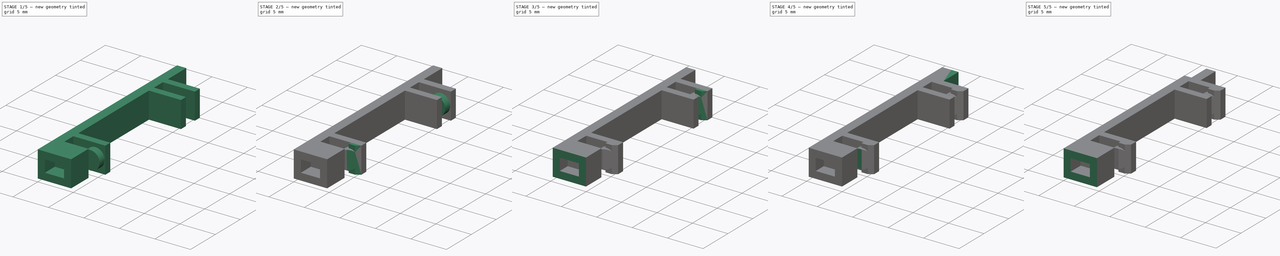
[diagram: build sequence overview — one tinted view per stage of 5, left to right]
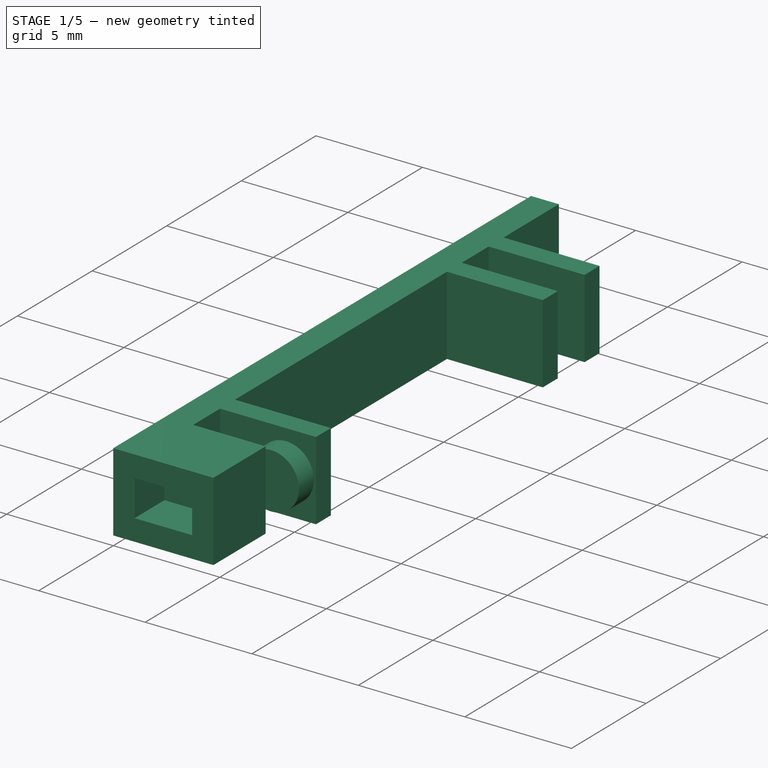
[diagram: stage 1 of 5 — iso view after this stage's code; geometry added in this stage tinted green]
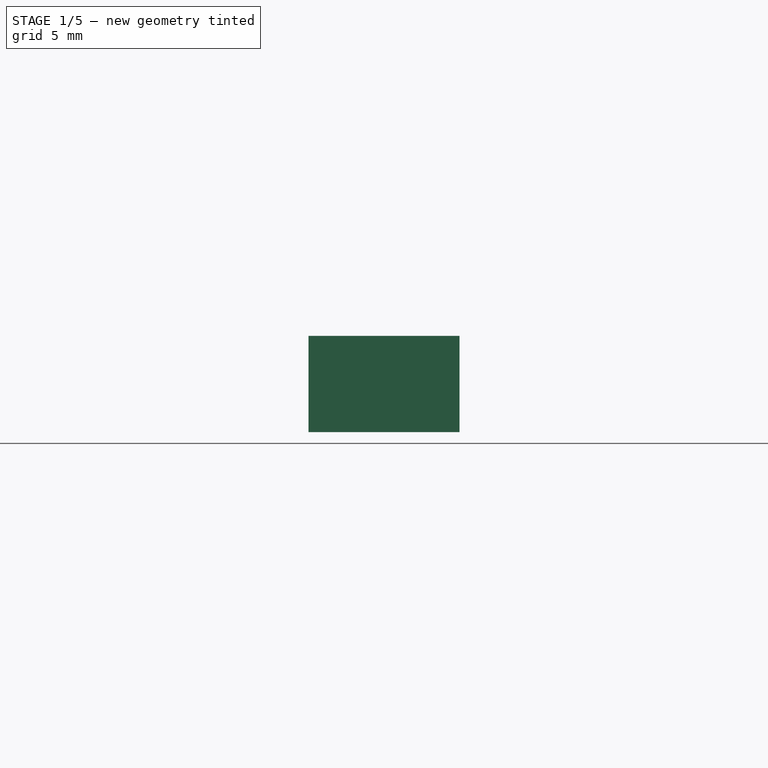
[diagram: stage 1 of 5 — front view after this stage's code; geometry added in this stage tinted green]
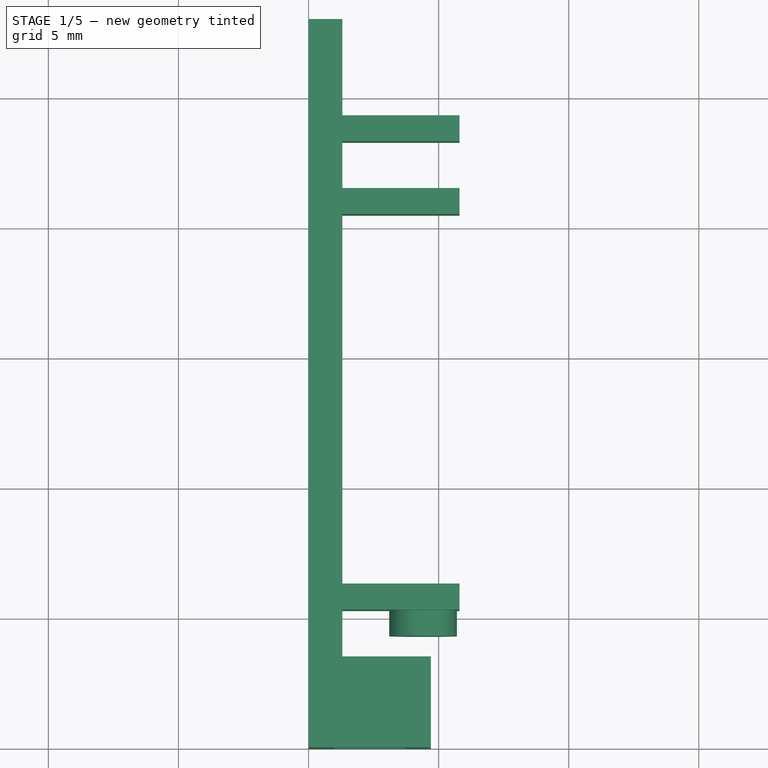
[diagram: stage 1 of 5 — top view after this stage's code; geometry added in this stage tinted green]
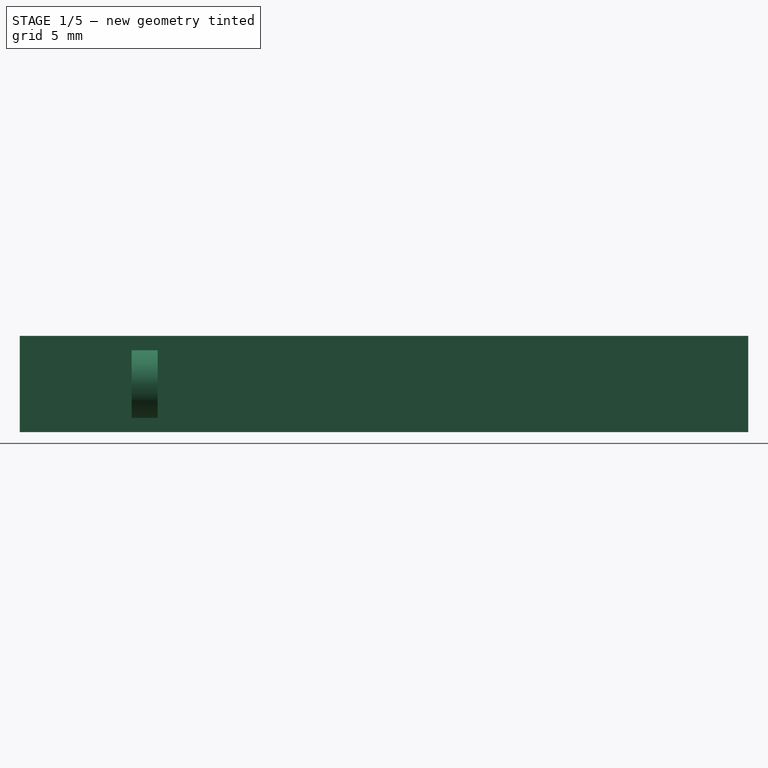
[diagram: stage 1 of 5 — right view after this stage's code; geometry added in this stage tinted green]
FCSTD DOCUMENT  (FreeCAD 0.16R6706 (Git))
Label: Abstandshalter V1.1
License: All rights reserved
LicenseURL: http://de.wikipedia.org/wiki/Alle_Rechte_vorbehalten
objects: Sketcher::SketchObject×16, PartDesign::Pad×8, PartDesign::Pocket×8
note: 48 computed .brp shape members not serialized (recipe doc carries the construction recipe); baked Part::Feature solids carry a one-line shape summary decoded from their .brp

FEATURE [Sketcher::SketchObject] Sketch
  sketch-geometry (18):
    g0: LineSegment StartX=0 StartY=28 StartZ=0 EndX=0 EndY=0 EndZ=0
    g1: LineSegment StartX=0 StartY=0 StartZ=0 EndX=4.7 EndY=0 EndZ=0
    g2: LineSegment StartX=4.7 StartY=0 StartZ=0 EndX=4.7 EndY=3.5 EndZ=0
    g3: LineSegment StartX=4.7 StartY=3.5 StartZ=0 EndX=1.3 EndY=3.5 EndZ=0
    g4: LineSegment StartX=1.3 StartY=3.5 StartZ=0 EndX=1.3 EndY=5.3 EndZ=0
    g5: LineSegment StartX=1.3 StartY=5.3 StartZ=0 EndX=5.8 EndY=5.3 EndZ=0
    g6: LineSegment StartX=5.8 StartY=5.3 StartZ=0 EndX=5.8 EndY=6.3 EndZ=0
    g7: LineSegment StartX=5.8 StartY=6.3 StartZ=0 EndX=1.3 EndY=6.3 EndZ=0
    g8: LineSegment StartX=1.3 StartY=6.3 StartZ=0 EndX=1.3 EndY=20.5 EndZ=0
    g9: LineSegment StartX=1.3 StartY=20.5 StartZ=0 EndX=5.8 EndY=20.5 EndZ=0
    g10: LineSegment StartX=5.8 StartY=20.5 StartZ=0 EndX=5.8 EndY=21.5 EndZ=0
    g11: LineSegment StartX=5.8 StartY=21.5 StartZ=0 EndX=1.3 EndY=21.5 EndZ=0
    g12: LineSegment StartX=1.3 StartY=21.5 StartZ=0 EndX=1.3 EndY=23.3 EndZ=0
    g13: LineSegment StartX=1.3 StartY=23.3 StartZ=0 EndX=5.8 EndY=23.3 EndZ=0
    g14: LineSegment StartX=5.8 StartY=23.3 StartZ=0 EndX=5.8 EndY=24.3 EndZ=0
    g15: LineSegment StartX=5.8 StartY=24.3 StartZ=0 EndX=1.3 EndY=24.3 EndZ=0
    g16: LineSegment StartX=1.3 StartY=28 StartZ=0 EndX=0 EndY=28 EndZ=0
    g17: LineSegment StartX=1.3 StartY=28 StartZ=0 EndX=1.3 EndY=24.3 EndZ=0
  constraints (53):
    c: PointOnObject(g0,g-2)
    c: Coincident(g0,g-1)
    c: Coincident(g0,g1)
    c: PointOnObject(g1,g-1)
    c: Coincident(g1,g2)
    c: Vertical(g2)
    c: Coincident(g2,g3)
    c: Horizontal(g3)
    c: Coincident(g3,g4)
    c: Vertical(g4)
    c: Coincident(g4,g5)
    c: Horizontal(g5)
    c: Coincident(g5,g6)
    c: Coincident(g6,g7)
    c: Horizontal(g7)
    c: Coincident(g7,g8)
    c: Vertical(g8)
    c: Coincident(g8,g9)
    c: Horizontal(g9)
    c: Coincident(g9,g10)
    c: Vertical(g10)
    c: Coincident(g10,g11)
    c: Coincident(g11,g12)
    c: Vertical(g12)
    c: Coincident(g12,g13)
    c: Horizontal(g13)
    c: Coincident(g13,g14)
    c: Vertical(g14)
    c: Coincident(g14,g15)
    c: Horizontal(g15)
    c: Coincident(g16,g0)
    c: DistanceY(g2,g2) = 3.5
    c: DistanceY(g4,g4) = 1.8
    c: DistanceY(g6,g6) = 1
    c: DistanceY(g10,g10) = 1
    c: Horizontal(g11)
    c: DistanceY(g12,g12) = 1.8
    c: DistanceY(g14,g14) = 1
    c: Horizontal(g16)
    c: DistanceY(g0,g0) = 28
    c: DistanceX(g16,g16) = 1.3
    c: DistanceX(g-1,g11) = 1.3
    c: DistanceX(g-1,g8) = 1.3
    c: DistanceX(g-1,g3) = 1.3
    c: Coincident(g17,g16)
    c: Coincident(g17,g15)
    c: Vertical(g17)
    c: DistanceY(g3,g11) = 18
    c: DistanceX(g1,g1) = 4.7
    c: Vertical(g6)
    c: DistanceX(g-1,g6) = 5.8
    c: DistanceX(g-1,g9) = 5.8
    c: DistanceX(g-1,g13) = 5.8
FEATURE [PartDesign::Pad] Pad
  Length = 3.7
  Length2 = 100
  Sketch = -> Sketch
  Type = 0
FEATURE [Sketcher::SketchObject] Sketch001
  ExternalGeometry = -> [Pad]
  Placement = pos=(0,0,0) rot=(1,0,0;1.5708rad)
  Support = -> Pad [Face2]
  sketch-geometry (4):
    g0: LineSegment StartX=1 StartY=2.7 StartZ=0 EndX=3.7 EndY=2.7 EndZ=0
    g1: LineSegment StartX=3.7 StartY=2.7 StartZ=0 EndX=3.7 EndY=1 EndZ=0
    g2: LineSegment StartX=3.7 StartY=1 StartZ=0 EndX=1 EndY=1 EndZ=0
    g3: LineSegment StartX=1 StartY=1 StartZ=0 EndX=1 EndY=2.7 EndZ=0
  constraints (12):
    c: Coincident(g0,g1)
    c: Coincident(g1,g2)
    c: Coincident(g2,g3)
    c: Coincident(g3,g0)
    c: Horizontal(g0)
    c: Horizontal(g2)
    c: Vertical(g1)
    c: Vertical(g3)
    c: DistanceY(g0,g-3) = 1
    c: DistanceY(g-1,g2) = 1
    c: DistanceX(g0,g-3) = 1
    c: DistanceX(g-3,g0) = 1
FEATURE [PartDesign::Pocket] Pocket
  Length = 2
  Sketch = -> Sketch001
  Type = 0
FEATURE [Sketcher::SketchObject] Sketch002
  ExternalGeometry = -> [Pocket]
  Placement = pos=(0,5.3,0) rot=(1,0,0;1.5708rad)
  Support = -> Pocket [Face14]
  sketch-geometry (1):
    g0: Circle CenterX=4.4 CenterY=1.85 CenterZ=0 NormalX=0 NormalY=0 NormalZ=1 Radius=1.3
  constraints (3):
    c: Radius(g0) = 1.3
    c: DistanceY(g0,g-5) = 1.85
    c: DistanceX(g-3,g0) = 3.1
FEATURE [PartDesign::Pad] Pad001
  Length = 1
  Length2 = 100
  Sketch = -> Sketch002
  Type = 0
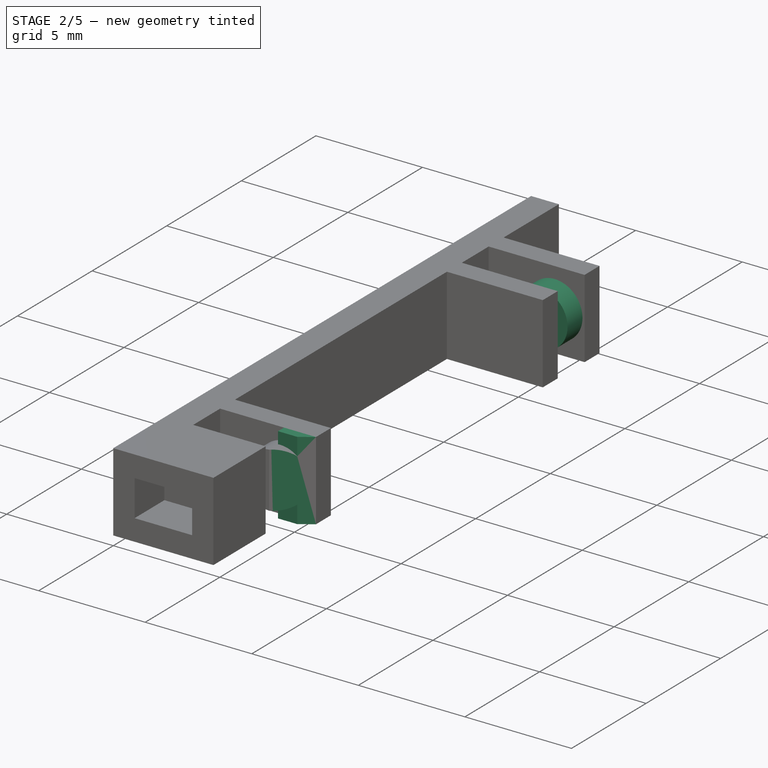
[diagram: stage 2 of 5 — iso view after this stage's code; geometry added in this stage tinted green]
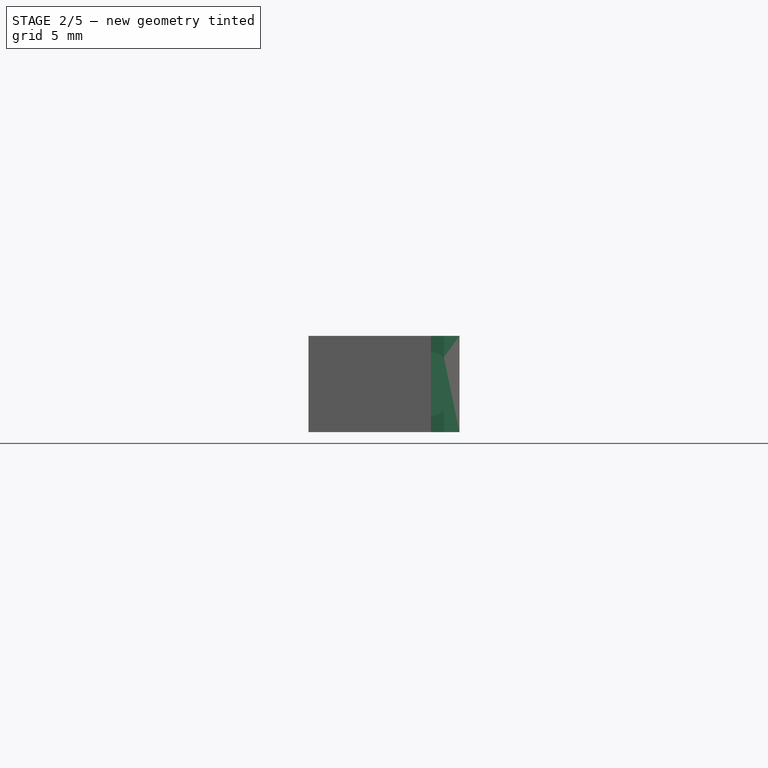
[diagram: stage 2 of 5 — front view after this stage's code; geometry added in this stage tinted green]
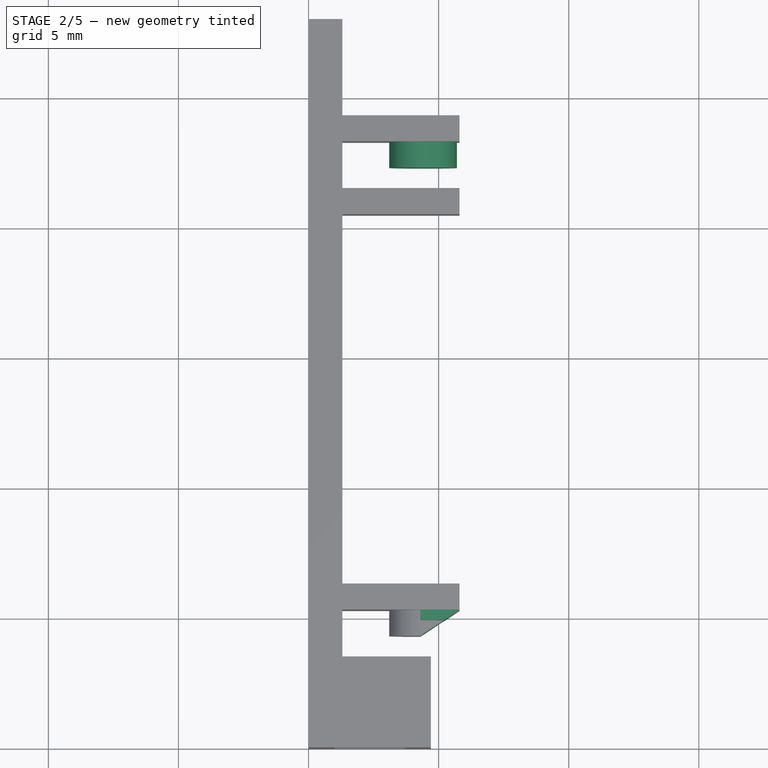
[diagram: stage 2 of 5 — top view after this stage's code; geometry added in this stage tinted green]
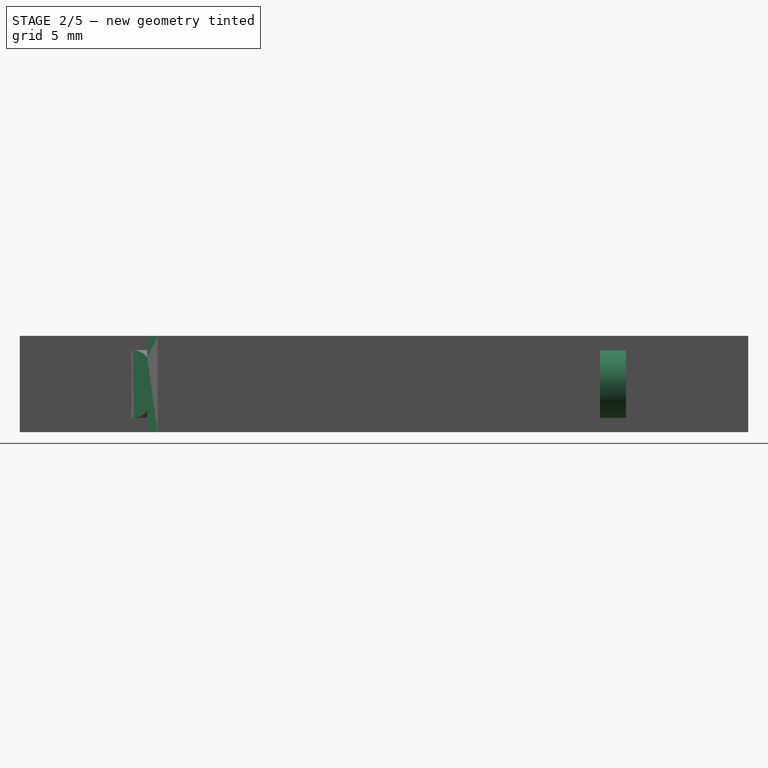
[diagram: stage 2 of 5 — right view after this stage's code; geometry added in this stage tinted green]
FEATURE [Sketcher::SketchObject] Sketch003
  ExternalGeometry = -> [Pad001]
  Placement = pos=(0,5.3,0) rot=(1,0,0;1.5708rad)
  Support = -> Pad001 [Face14]
  sketch-geometry (4):
    g0: LineSegment StartX=5.8 StartY=3.7 StartZ=0 EndX=4.3 EndY=3.7 EndZ=0
    g1: LineSegment StartX=4.3 StartY=3.7 StartZ=0 EndX=4.3 EndY=0 EndZ=0
    g2: LineSegment StartX=4.3 StartY=0 StartZ=0 EndX=5.8 EndY=0 EndZ=0
    g3: LineSegment StartX=5.8 StartY=0 StartZ=0 EndX=5.8 EndY=3.7 EndZ=0
  constraints (11):
    c: Coincident(g0,g1)
    c: Coincident(g1,g2)
    c: Coincident(g2,g3)
    c: Coincident(g3,g0)
    c: Horizontal(g0)
    c: Horizontal(g2)
    c: Vertical(g1)
    c: Vertical(g3)
    c: Coincident(g0,g-3)
    c: PointOnObject(g1,g-4)
    c: DistanceX(g0,g0) = 1.5
FEATURE [PartDesign::Pad] Pad002
  Length = 0.4
  Length2 = 100
  Sketch = -> Sketch003
  Type = 0
FEATURE [Sketcher::SketchObject] Sketch004
  ExternalGeometry = -> [Pad002]
  Placement = pos=(0,0,3.7) rot=(0,0,1;0rad)
  Support = -> Pad002 [Face29]
  sketch-geometry (3):
    g0: LineSegment StartX=5.8 StartY=5.3 StartZ=0 EndX=4.3 EndY=4.3 EndZ=0
    g1: LineSegment StartX=4.3 StartY=4.3 StartZ=0 EndX=5.8 EndY=4.3 EndZ=0
    g2: LineSegment StartX=5.8 StartY=4.3 StartZ=0 EndX=5.8 EndY=5.3 EndZ=0
  constraints (9):
    c: Coincident(g0,g1)
    c: Coincident(g2,g1)
    c: Coincident(g2,g0)
    c: Vertical(g2)
    c: PointOnObject(g0,g-3)
    c: DistanceX(g-4,g0) = 0
    c: DistanceY(g0,g-4) = 1
    c: Horizontal(g1)
    c: PointOnObject(g0,g-4)
FEATURE [PartDesign::Pocket] Pocket001
  Length = 5
  Sketch = -> Sketch004
  Type = 0
FEATURE [Sketcher::SketchObject] Sketch005
  ExternalGeometry = -> [Pocket001]
  Placement = pos=(0,23.3,0) rot=(1,0,0;1.5708rad)
  Support = -> Pocket001 [Face19]
  sketch-geometry (1):
    g0: Circle CenterX=4.4 CenterY=1.85 CenterZ=0 NormalX=0 NormalY=0 NormalZ=1 Radius=1.3
  constraints (3):
    c: Radius(g0) = 1.3
    c: DistanceX(g-3,g0) = 3.1
    c: DistanceY(g0,g-5) = 1.85
FEATURE [PartDesign::Pad] Pad003
  Length = 1
  Length2 = 100
  Sketch = -> Sketch005
  Type = 0
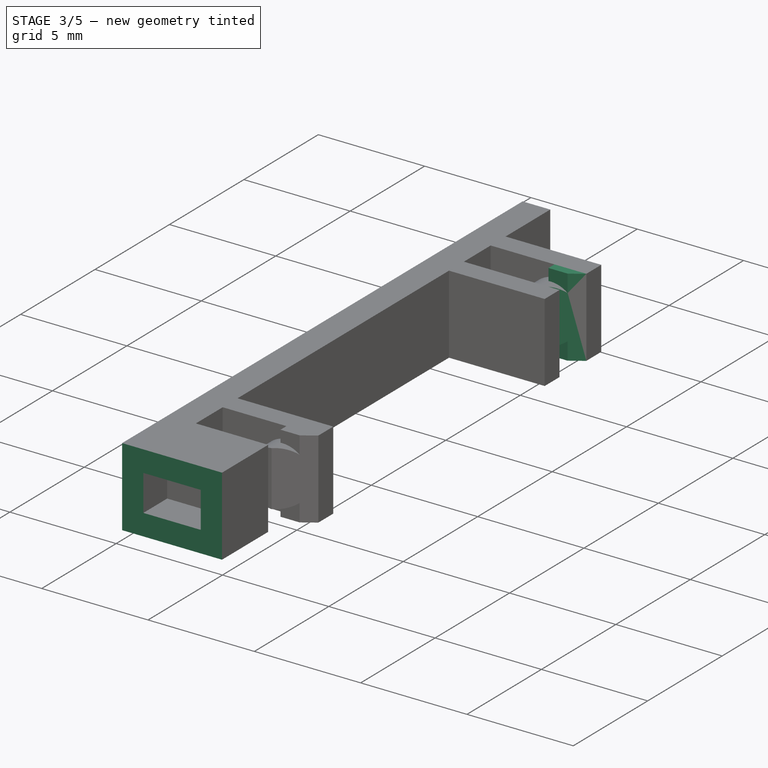
[diagram: stage 3 of 5 — iso view after this stage's code; geometry added in this stage tinted green]
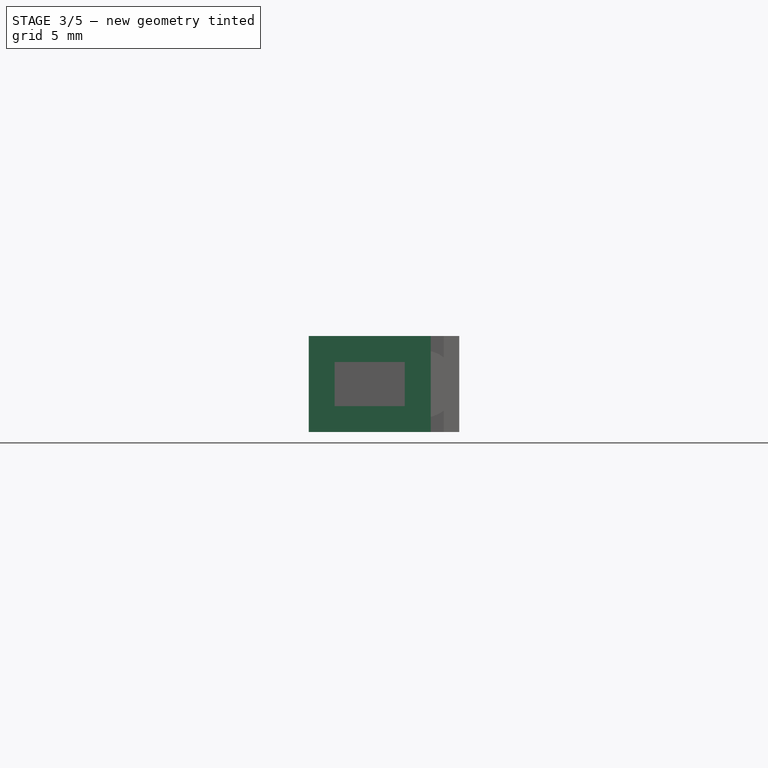
[diagram: stage 3 of 5 — front view after this stage's code; geometry added in this stage tinted green]
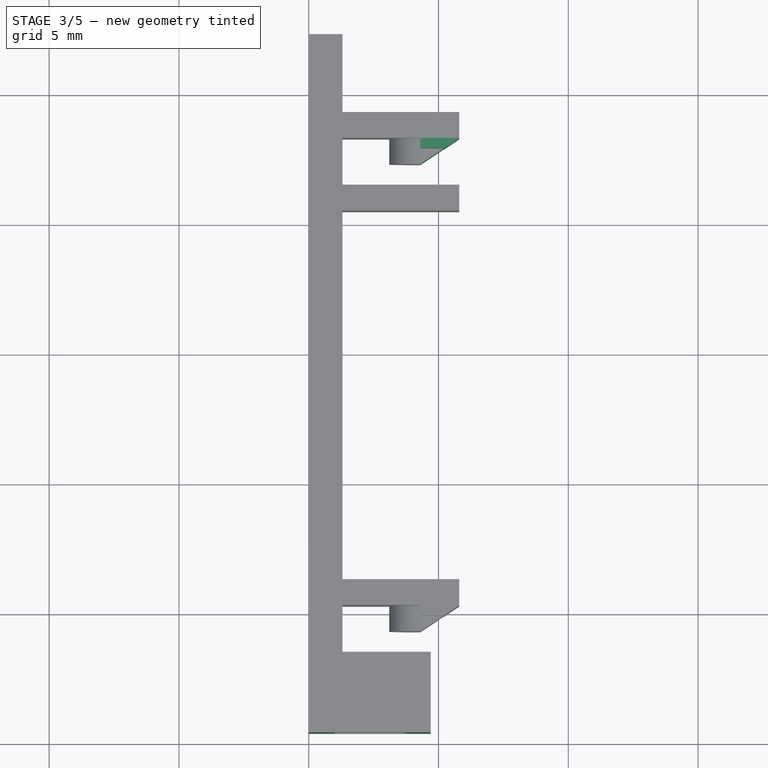
[diagram: stage 3 of 5 — top view after this stage's code; geometry added in this stage tinted green]
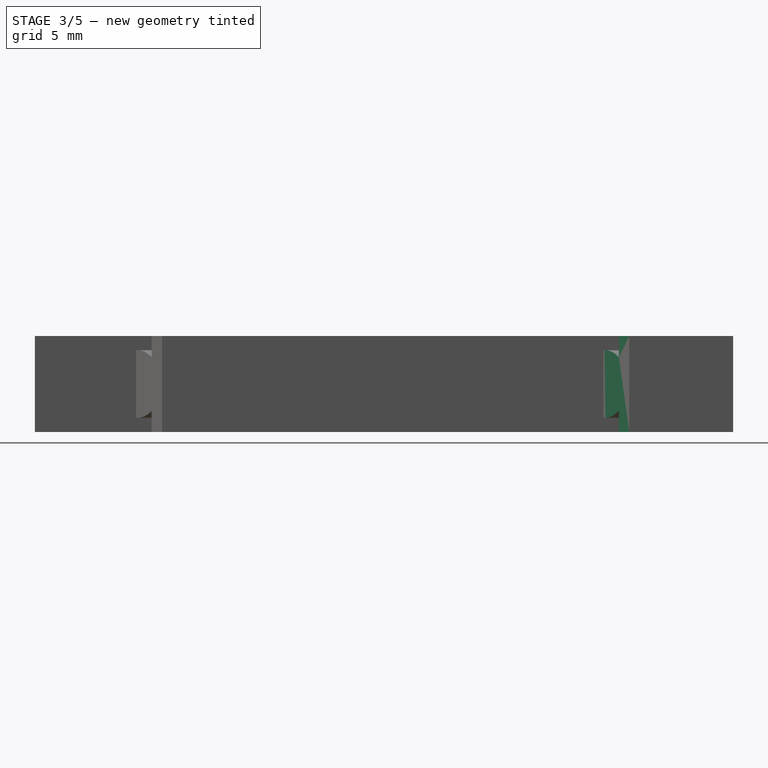
[diagram: stage 3 of 5 — right view after this stage's code; geometry added in this stage tinted green]
FEATURE [Sketcher::SketchObject] Sketch006
  ExternalGeometry = -> [Pad003]
  Placement = pos=(0,23.3,0) rot=(1,0,0;1.5708rad)
  Support = -> Pad003 [Face19]
  sketch-geometry (4):
    g0: LineSegment StartX=5.8 StartY=3.7 StartZ=0 EndX=4.3 EndY=3.7 EndZ=0
    g1: LineSegment StartX=4.3 StartY=3.7 StartZ=0 EndX=4.3 EndY=0 EndZ=0
    g2: LineSegment StartX=4.3 StartY=0 StartZ=0 EndX=5.8 EndY=0 EndZ=0
    g3: LineSegment StartX=5.8 StartY=0 StartZ=0 EndX=5.8 EndY=3.7 EndZ=0
  constraints (11):
    c: Coincident(g0,g1)
    c: Coincident(g1,g2)
    c: Coincident(g2,g3)
    c: Coincident(g3,g0)
    c: Horizontal(g0)
    c: Horizontal(g2)
    c: Vertical(g1)
    c: Vertical(g3)
    c: Coincident(g0,g-3)
    c: PointOnObject(g1,g-4)
    c: DistanceX(g0,g0) = 1.5
FEATURE [PartDesign::Pad] Pad004
  Length = 0.4
  Length2 = 100
  Sketch = -> Sketch006
  Type = 0
FEATURE [Sketcher::SketchObject] Sketch007
  ExternalGeometry = -> [Pad004]
  Placement = pos=(0,0,3.7) rot=(0,0,1;0rad)
  Support = -> Pad004 [Face37]
  sketch-geometry (3):
    g0: LineSegment StartX=5.8 StartY=23.3 StartZ=0 EndX=4.3 EndY=22.3 EndZ=0
    g1: LineSegment StartX=4.3 StartY=22.3 StartZ=0 EndX=5.8 EndY=22.3 EndZ=0
    g2: LineSegment StartX=5.8 StartY=22.3 StartZ=0 EndX=5.8 EndY=23.3 EndZ=0
  constraints (9):
    c: PointOnObject(g0,g-3)
    c: Coincident(g0,g1)
    c: Horizontal(g1)
    c: Coincident(g1,g2)
    c: Coincident(g2,g0)
    c: Vertical(g2)
    c: DistanceY(g0,g-4) = 1
    c: DistanceX(g-4,g0) = 0
    c: PointOnObject(g0,g-4)
FEATURE [PartDesign::Pocket] Pocket002
  Length = 5
  Sketch = -> Sketch007
  Type = 0
FEATURE [Sketcher::SketchObject] Sketch008
  ExternalGeometry = -> [Pocket002]
  Placement = pos=(0,0,0) rot=(1,0,0;1.5708rad)
  Support = -> Pocket002 [Face9]
  sketch-geometry (4):
    g0: LineSegment StartX=0 StartY=3.7 StartZ=0 EndX=4.7 EndY=3.7 EndZ=0
    g1: LineSegment StartX=4.7 StartY=3.7 StartZ=0 EndX=4.7 EndY=0 EndZ=0
    g2: LineSegment StartX=4.7 StartY=0 StartZ=0 EndX=0 EndY=0 EndZ=0
    g3: LineSegment StartX=0 StartY=0 StartZ=0 EndX=0 EndY=3.7 EndZ=0
  constraints (10):
    c: Coincident(g0,g1)
    c: Coincident(g1,g2)
    c: Coincident(g2,g3)
    c: Coincident(g3,g0)
    c: Horizontal(g0)
    c: Horizontal(g2)
    c: Vertical(g1)
    c: Vertical(g3)
    c: Coincident(g0,g-3)
    c: Coincident(g1,g-4)
FEATURE [PartDesign::Pocket] Pocket003
  Length = 0.4
  Sketch = -> Sketch008
  Type = 0
FEATURE [Sketcher::SketchObject] Sketch009
  ExternalGeometry = -> [Pocket003]
  Placement = pos=(0,28,0) rot=(0,0.707107,0.707107;3.14159rad)
  Support = -> Pocket003 [Face26]
  sketch-geometry (4):
    g0: LineSegment StartX=-1.3 StartY=3.7 StartZ=0 EndX=0 EndY=3.7 EndZ=0
    g1: LineSegment StartX=0 StartY=3.7 StartZ=0 EndX=0 EndY=0 EndZ=0
    g2: LineSegment StartX=0 StartY=0 StartZ=0 EndX=-1.3 EndY=0 EndZ=0
    g3: LineSegment StartX=-1.3 StartY=0 StartZ=0 EndX=-1.3 EndY=3.7 EndZ=0
  constraints (10):
    c: Coincident(g0,g1)
    c: Coincident(g1,g2)
    c: Coincident(g2,g3)
    c: Coincident(g3,g0)
    c: Horizontal(g0)
    c: Horizontal(g2)
    c: Vertical(g1)
    c: Vertical(g3)
    c: Coincident(g0,g-3)
    c: Coincident(g1,g-1)
FEATURE [PartDesign::Pocket] Pocket004
  Length = 0.7
  Sketch = -> Sketch009
  Type = 0
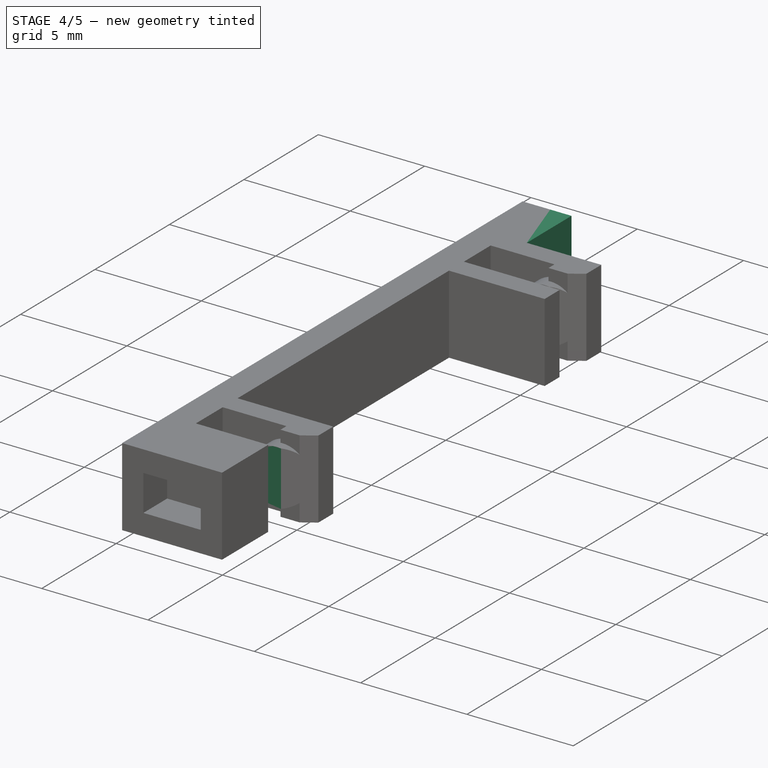
[diagram: stage 4 of 5 — iso view after this stage's code; geometry added in this stage tinted green]
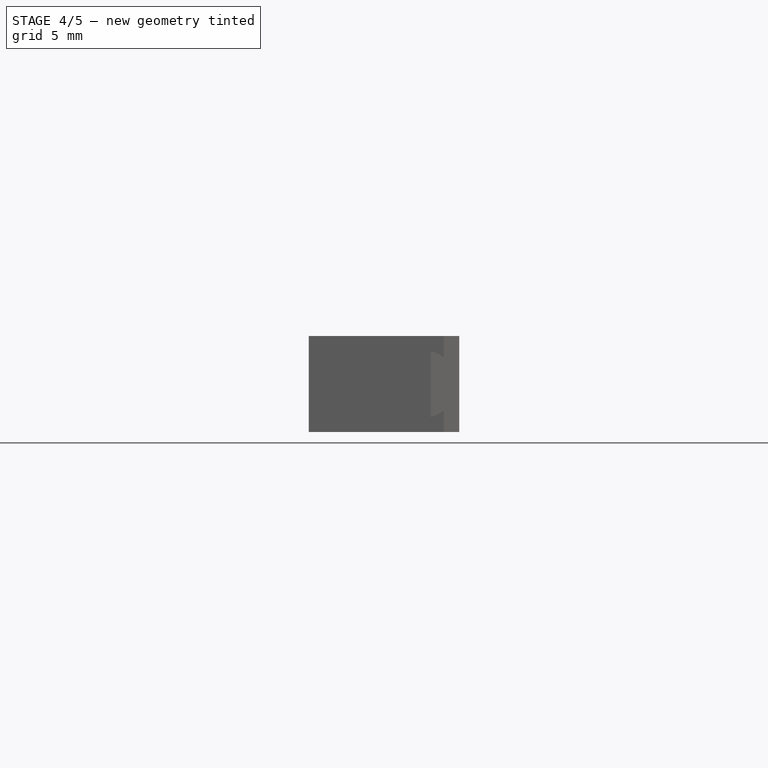
[diagram: stage 4 of 5 — front view after this stage's code; geometry added in this stage tinted green]
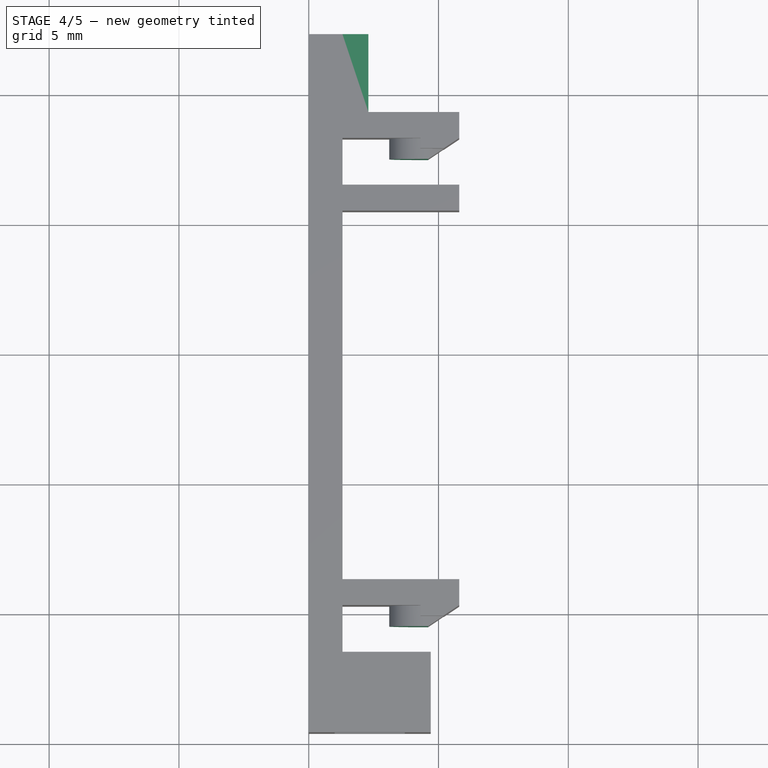
[diagram: stage 4 of 5 — top view after this stage's code; geometry added in this stage tinted green]
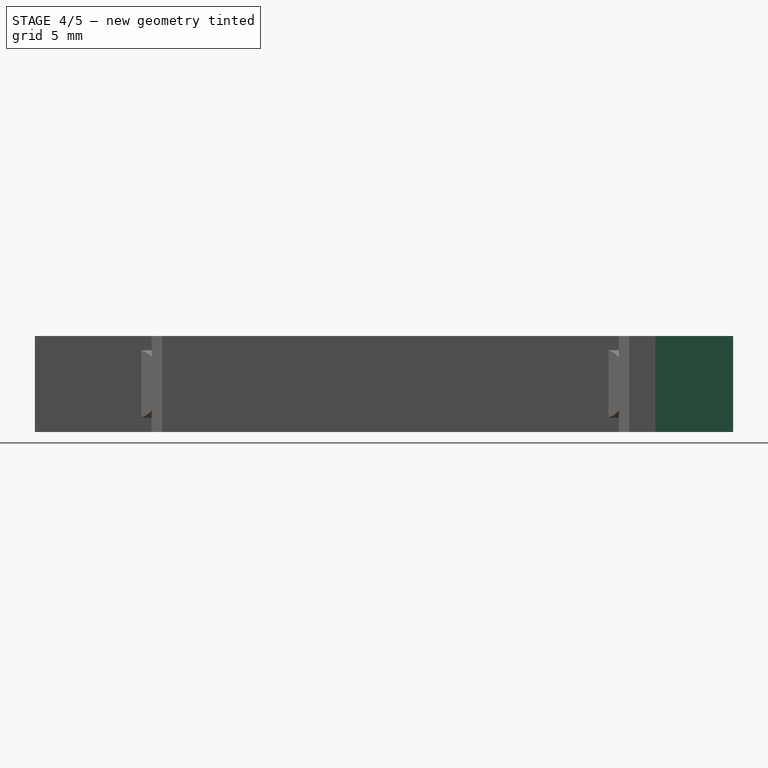
[diagram: stage 4 of 5 — right view after this stage's code; geometry added in this stage tinted green]
FEATURE [Sketcher::SketchObject] Sketch010
  ExternalGeometry = -> [Pocket004]
  Placement = pos=(0,4.3,0) rot=(1,0,0;1.5708rad)
  Support = -> Pocket004 [Face32]
  sketch-geometry (4):
    g0: LineSegment StartX=5.3 StartY=3.64615 StartZ=0 EndX=2.8 EndY=3.64615 EndZ=0
    g1: LineSegment StartX=2.8 StartY=3.64615 StartZ=0 EndX=2.8 EndY=0.0538519 EndZ=0
    g2: LineSegment StartX=2.8 StartY=0.0538519 StartZ=0 EndX=5.3 EndY=0.0538519 EndZ=0
    g3: LineSegment StartX=5.3 StartY=0.0538519 StartZ=0 EndX=5.3 EndY=3.64615 EndZ=0
  constraints (12):
    c: Coincident(g0,g1)
    c: Coincident(g1,g2)
    c: Coincident(g2,g3)
    c: Coincident(g3,g0)
    c: Horizontal(g0)
    c: Horizontal(g2)
    c: Vertical(g1)
    c: Vertical(g3)
    c: DistanceY(g-3,g0) = 0.5
    c: DistanceY(g2,g-3) = 0.5
    c: DistanceX(g-3,g0) = 1
    c: DistanceX(g0,g-3) = 1.5
FEATURE [PartDesign::Pocket] Pocket005
  Length = 0.2
  Sketch = -> Sketch010
  Type = 0
FEATURE [Sketcher::SketchObject] Sketch011
  ExternalGeometry = -> [Pocket005]
  Placement = pos=(0,22.3,0) rot=(1,0,0;1.5708rad)
  Support = -> Pocket005 [Face38]
  sketch-geometry (4):
    g0: LineSegment StartX=2.8 StartY=3.64615 StartZ=0 EndX=4.8 EndY=3.64615 EndZ=0
    g1: LineSegment StartX=4.8 StartY=3.64615 StartZ=0 EndX=4.8 EndY=0.0538519 EndZ=0
    g2: LineSegment StartX=4.8 StartY=0.0538519 StartZ=0 EndX=2.8 EndY=0.0538519 EndZ=0
    g3: LineSegment StartX=2.8 StartY=0.0538519 StartZ=0 EndX=2.8 EndY=3.64615 EndZ=0
  constraints (12):
    c: Coincident(g0,g1)
    c: Coincident(g1,g2)
    c: Coincident(g2,g3)
    c: Coincident(g3,g0)
    c: Horizontal(g0)
    c: Horizontal(g2)
    c: Vertical(g1)
    c: Vertical(g3)
    c: DistanceY(g-3,g0) = 0.5
    c: DistanceY(g1,g-3) = 0.5
    c: DistanceX(g-3,g0) = 0.5
    c: DistanceX(g0,g-3) = 1.5
FEATURE [PartDesign::Pocket] Pocket006
  Length = 0.2
  Sketch = -> Sketch011
  Type = 0
FEATURE [Sketcher::SketchObject] Sketch012
  ExternalGeometry = -> [Pocket006]
  Placement = pos=(1.3,0,0) rot=(0.57735,0.57735,0.57735;2.0944rad)
  Support = -> Pocket006 [Face25]
  sketch-geometry (4):
    g0: LineSegment StartX=27.3 StartY=3.7 StartZ=0 EndX=24.3 EndY=3.7 EndZ=0
    g1: LineSegment StartX=24.3 StartY=3.7 StartZ=0 EndX=24.3 EndY=0 EndZ=0
    g2: LineSegment StartX=24.3 StartY=0 StartZ=0 EndX=27.3 EndY=0 EndZ=0
    g3: LineSegment StartX=27.3 StartY=0 StartZ=0 EndX=27.3 EndY=3.7 EndZ=0
  constraints (10):
    c: Coincident(g0,g1)
    c: Coincident(g1,g2)
    c: Coincident(g2,g3)
    c: Coincident(g3,g0)
    c: Horizontal(g0)
    c: Horizontal(g2)
    c: Vertical(g1)
    c: Vertical(g3)
    c: Coincident(g0,g-4)
    c: Coincident(g1,g-3)
FEATURE [PartDesign::Pad] Pad005
  Length = 1
  Length2 = 100
  Sketch = -> Sketch012
  Type = 0
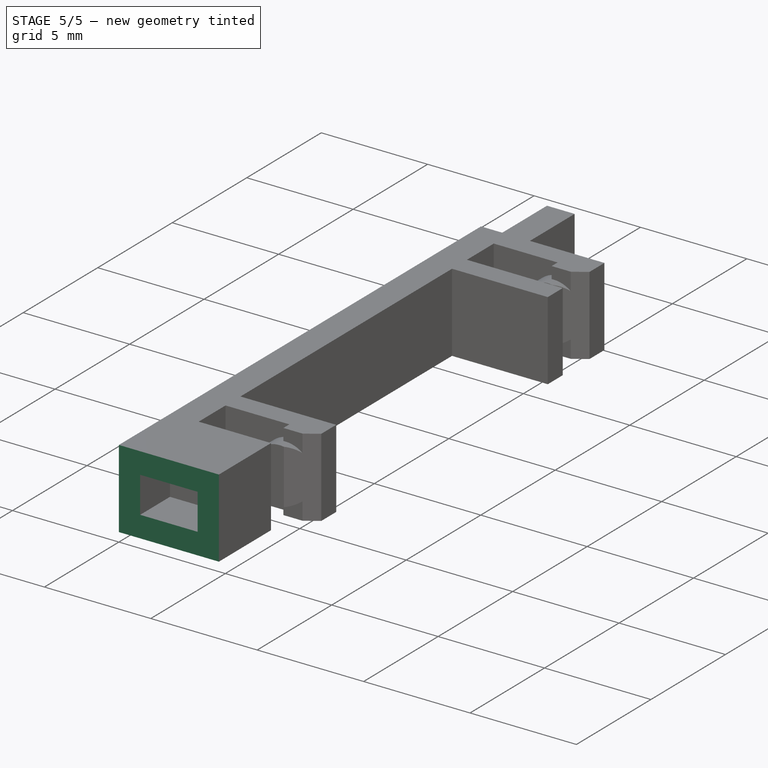
[diagram: stage 5 of 5 — iso view after this stage's code; geometry added in this stage tinted green]
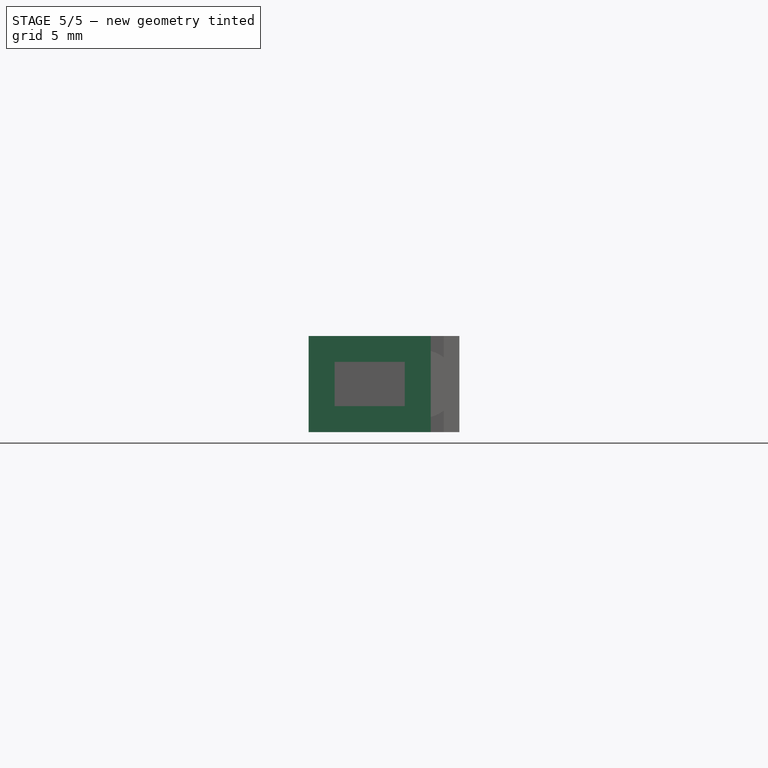
[diagram: stage 5 of 5 — front view after this stage's code; geometry added in this stage tinted green]
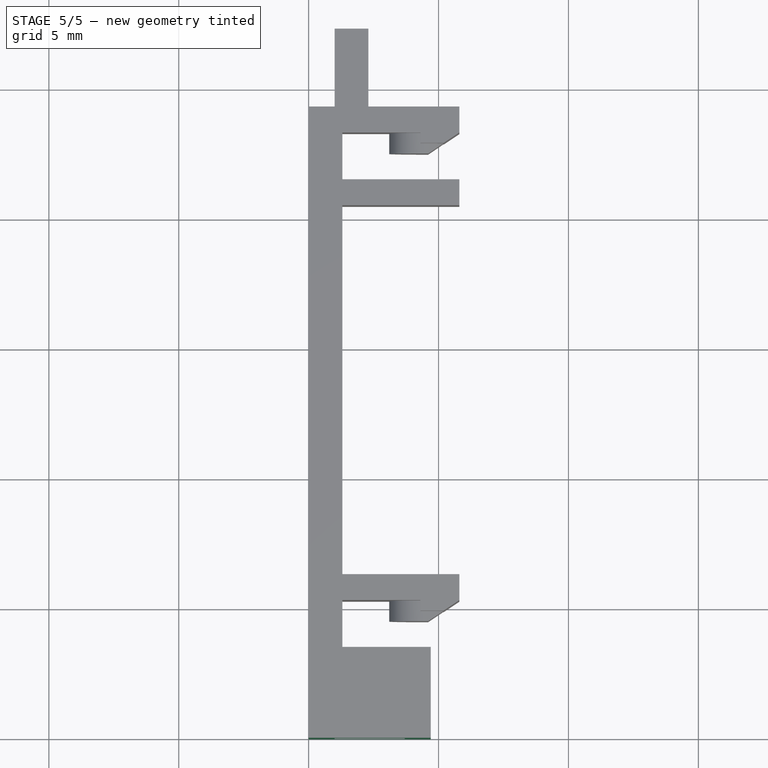
[diagram: stage 5 of 5 — top view after this stage's code; geometry added in this stage tinted green]
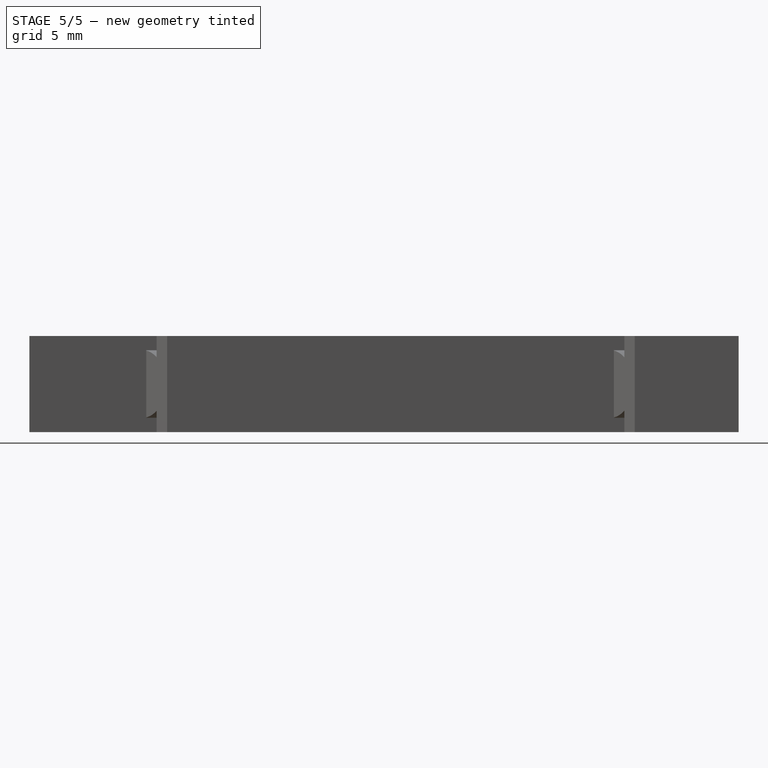
[diagram: stage 5 of 5 — right view after this stage's code; geometry added in this stage tinted green]
FEATURE [Sketcher::SketchObject] Sketch013
  ExternalGeometry = -> [Pad005]
  Placement = pos=(0,0,0) rot=(0.57735,-0.57735,-0.57735;2.0944rad)
  Support = -> Pad005 [Face7]
  sketch-geometry (4):
    g0: LineSegment StartX=-27.3 StartY=3.7 StartZ=0 EndX=-24.3 EndY=3.7 EndZ=0
    g1: LineSegment StartX=-24.3 StartY=3.7 StartZ=0 EndX=-24.3 EndY=0 EndZ=0
    g2: LineSegment StartX=-24.3 StartY=0 StartZ=0 EndX=-27.3 EndY=0 EndZ=0
    g3: LineSegment StartX=-27.3 StartY=0 StartZ=0 EndX=-27.3 EndY=3.7 EndZ=0
  constraints (11):
    c: Coincident(g0,g1)
    c: Coincident(g1,g2)
    c: Coincident(g2,g3)
    c: Coincident(g3,g0)
    c: Horizontal(g0)
    c: Horizontal(g2)
    c: Vertical(g1)
    c: Vertical(g3)
    c: Coincident(g0,g-3)
    c: PointOnObject(g1,g-1)
    c: DistanceX(g0,g0) = 3
FEATURE [PartDesign::Pocket] Pocket007
  Length = 1
  Sketch = -> Sketch013
  Type = 0
FEATURE [Sketcher::SketchObject] Sketch014
  ExternalGeometry = -> [Pocket007]
  Placement = pos=(0,0.4,0) rot=(1,0,0;1.5708rad)
  Support = -> Pocket007 [Face9]
  sketch-geometry (8):
    g0: LineSegment StartX=3.7 StartY=2.7 StartZ=0 EndX=3.7 EndY=3.7 EndZ=0
    g1: LineSegment StartX=3.7 StartY=3.7 StartZ=0 EndX=0 EndY=3.7 EndZ=0
    g2: LineSegment StartX=0 StartY=3.7 StartZ=0 EndX=0 EndY=0 EndZ=0
    g3: LineSegment StartX=0 StartY=0 StartZ=0 EndX=3.7 EndY=0 EndZ=0
    g4: LineSegment StartX=3.7 StartY=0 StartZ=0 EndX=3.7 EndY=1 EndZ=0
    g5: LineSegment StartX=3.7 StartY=1 StartZ=0 EndX=1 EndY=1 EndZ=0
    g6: LineSegment StartX=1 StartY=1 StartZ=0 EndX=1 EndY=2.7 EndZ=0
    g7: LineSegment StartX=1 StartY=2.7 StartZ=0 EndX=3.7 EndY=2.7 EndZ=0
  constraints (18):
    c: Coincident(g-4,g0)
    c: Vertical(g0)
    c: Coincident(g0,g1)
    c: Coincident(g1,g-6)
    c: Horizontal(g1)
    c: Coincident(g1,g2)
    c: Coincident(g2,g-1)
    c: Coincident(g2,g3)
    c: Horizontal(g3)
    c: Coincident(g3,g4)
    c: Coincident(g4,g-4)
    c: Coincident(g4,g5)
    c: Coincident(g5,g-5)
    c: Coincident(g5,g6)
    c: Coincident(g6,g-5)
    c: Coincident(g6,g7)
    c: Coincident(g7,g0)
    c: Vertical(g4)
FEATURE [PartDesign::Pad] Pad006
  Length = 0.4
  Length2 = 100
  Sketch = -> Sketch014
  Type = 0
FEATURE [Sketcher::SketchObject] Sketch015
  ExternalGeometry = -> [Pad006]
  Placement = pos=(0,0.4,0) rot=(1,0,0;1.5708rad)
  Support = -> Pad006 [Face7]
  sketch-geometry (4):
    g0: LineSegment StartX=4.7 StartY=3.7 StartZ=0 EndX=3.7 EndY=3.7 EndZ=0
    g1: LineSegment StartX=3.7 StartY=3.7 StartZ=0 EndX=3.7 EndY=0 EndZ=0
    g2: LineSegment StartX=3.7 StartY=0 StartZ=0 EndX=4.7 EndY=0 EndZ=0
    g3: LineSegment StartX=4.7 StartY=0 StartZ=0 EndX=4.7 EndY=3.7 EndZ=0
  constraints (11):
    c: Coincident(g0,g1)
    c: Coincident(g1,g2)
    c: Coincident(g2,g3)
    c: Coincident(g3,g0)
    c: Horizontal(g0)
    c: Horizontal(g2)
    c: Vertical(g1)
    c: Vertical(g3)
    c: Coincident(g0,g-3)
    c: PointOnObject(g-4,g1)
    c: Coincident(g2,g-3)
FEATURE [PartDesign::Pad] Pad007
  Length = 0.4
  Length2 = 100
  Sketch = -> Sketch015
  Type = 0
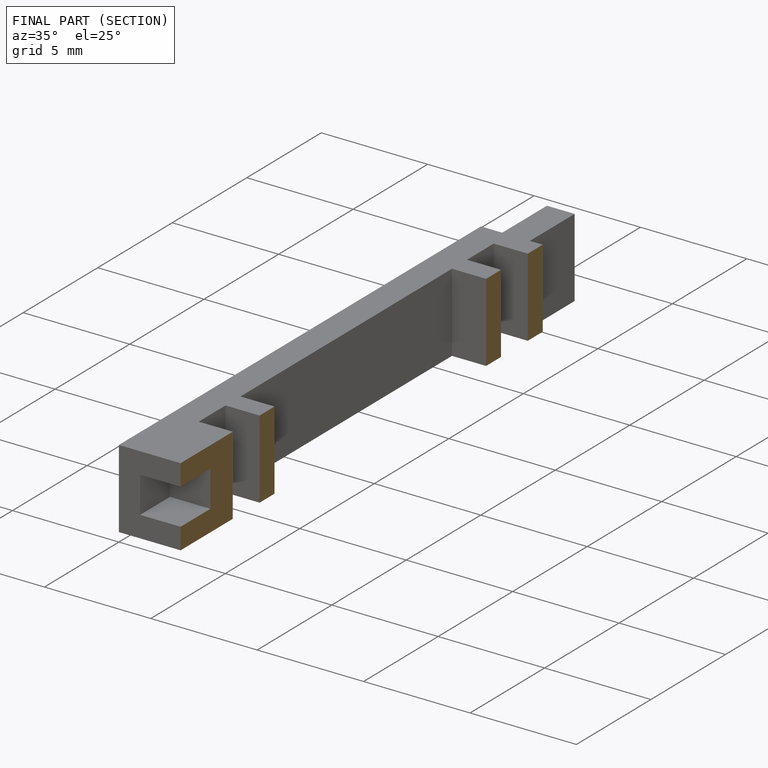
[diagram: finished part — half-section view (interior)]
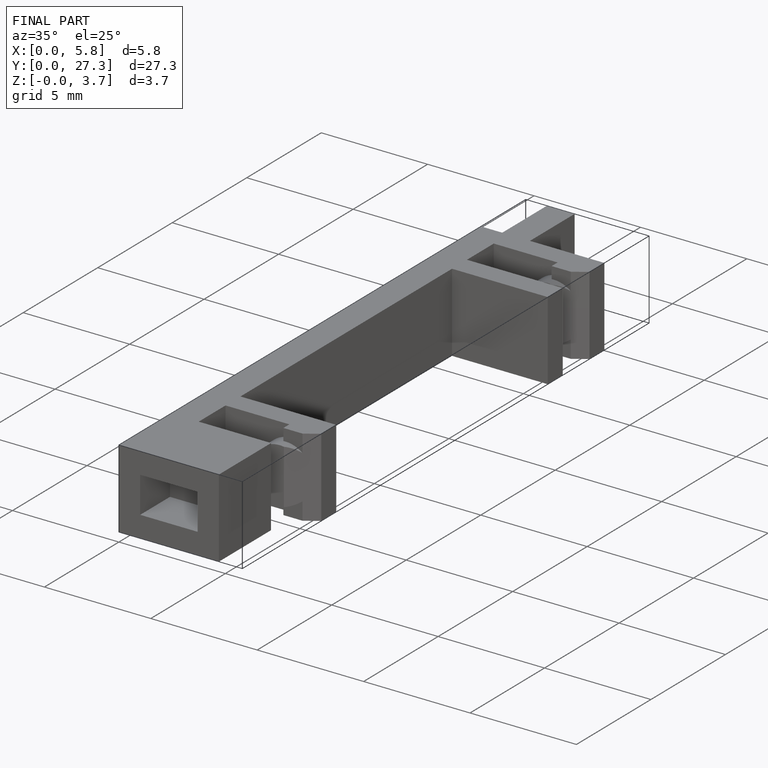
[diagram: finished part — iso view with bounding-box wireframe]
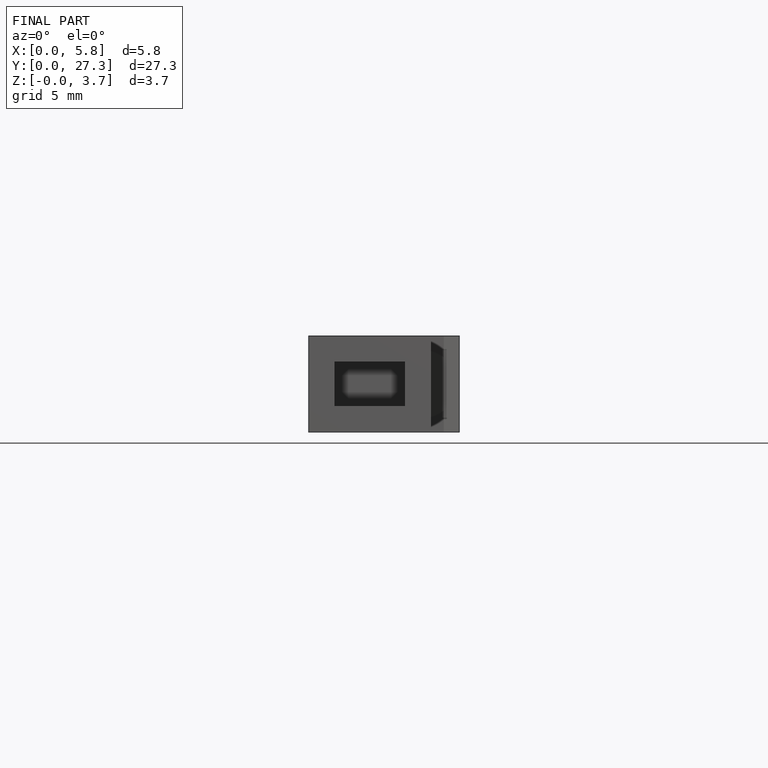
[diagram: finished part — front view with bounding-box wireframe]
